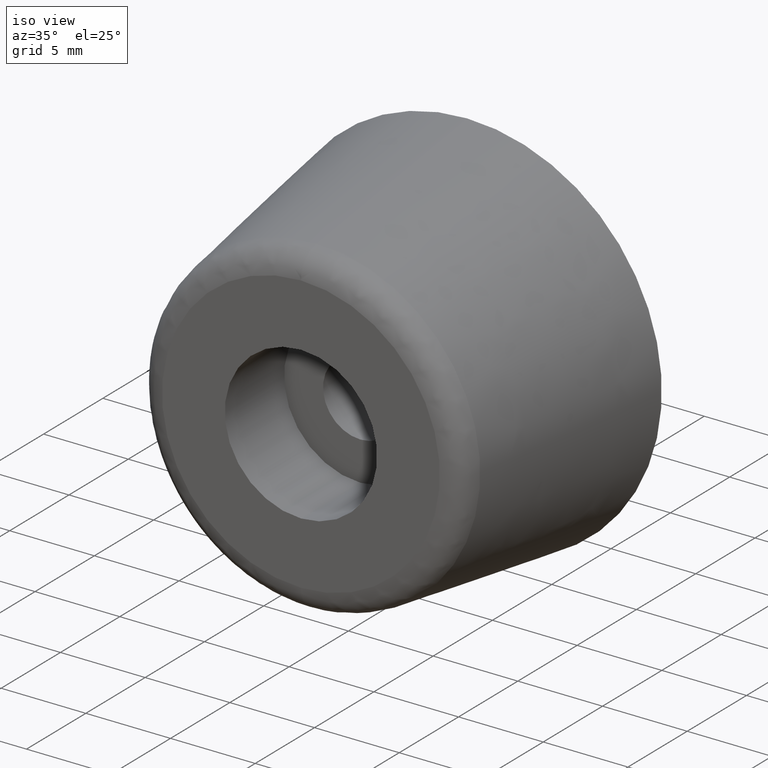
[diagram: clean part render]
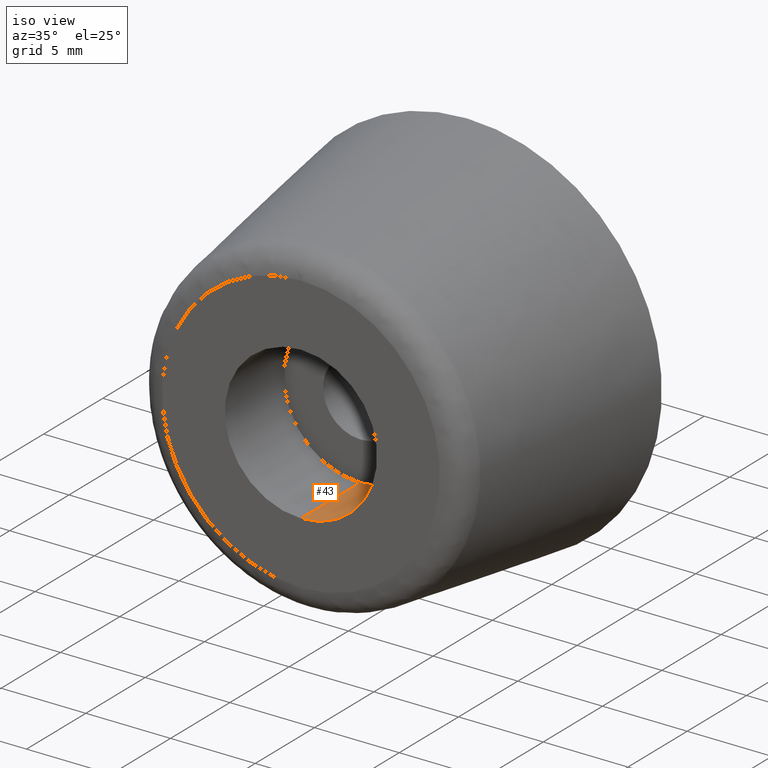
[diagram: same view with one face highlighted and labeled with its STEP entity id]
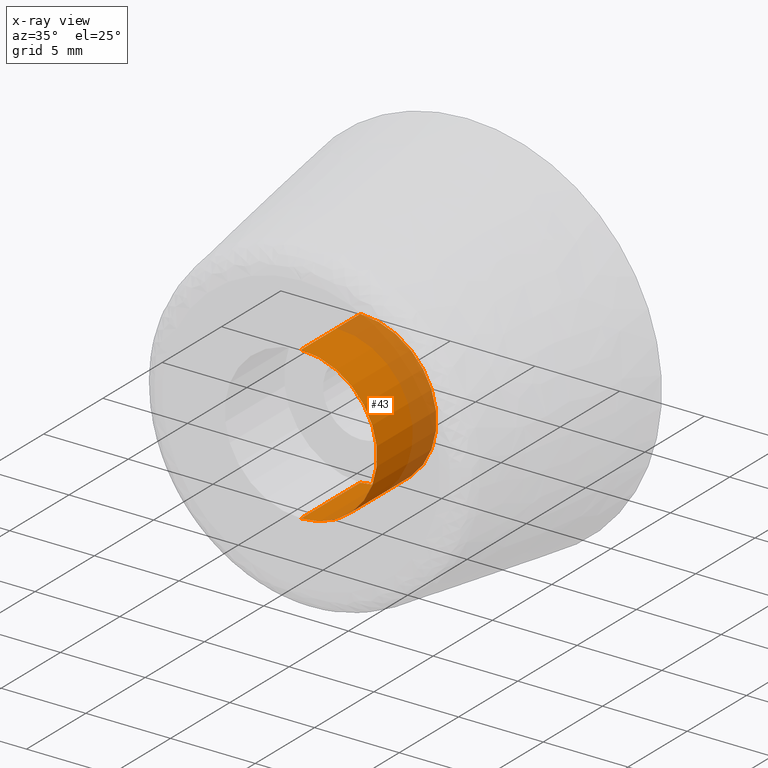
[diagram: x-ray of the same camera — body ghosted, the highlighted face saturated]
A machine part, iso view. The second image highlights one B-rep face of the part: STEP entity #43.
The next image is the same camera in x-ray: the body ghosted, the highlighted face saturated — about 36% of this face is hidden behind the body in this view.
In plain terms, the highlighted cylindrical surface (partial cylindrical patch) has radius 4.5 mm, axis along (-0, 1, 0).
Its self-contained STEP definition (entity closure, byte-faithful):
#43=ADVANCED_FACE('',(#85),#84,.F.);
#84=CYLINDRICAL_SURFACE('',#185,4.50000000000E+00);
#85=FACE_OUTER_BOUND('',#186,.T.);
#182=CARTESIAN_POINT('',(-1.42108547152E-14,0.00000000000E+00,0.00000000000E+00));
#183=DIRECTION('',(-0.00000000000E+00,1.00000000000E+00,0.00000000000E+00));
#184=DIRECTION('',(-0.00000000000E+00,-0.00000000000E+00,1.00000000000E+00));
#185=AXIS2_PLACEMENT_3D('',#182,#183,#184);
#186=EDGE_LOOP('',(#288,#289,#290,#291));
#288=ORIENTED_EDGE('',*,*,#327,.T.);
#289=ORIENTED_EDGE('',*,*,#332,.T.);
#290=ORIENTED_EDGE('',*,*,#320,.F.);
#291=ORIENTED_EDGE('',*,*,#333,.F.);
#320=EDGE_CURVE('',#342,#343,#344,.T.);
#327=EDGE_CURVE('',#385,#384,#392,.T.);
#332=EDGE_CURVE('',#384,#343,#426,.T.);
#333=EDGE_CURVE('',#385,#342,#432,.T.);
#342=VERTEX_POINT('',#488);
#343=VERTEX_POINT('',#489);
#344=CIRCLE('',#493,4.50000000000E+00);
#384=VERTEX_POINT('',#518);
#385=VERTEX_POINT('',#519);
#392=CIRCLE('',#527,4.50000000000E+00);
#426=(BOUNDED_CURVE() B_SPLINE_CURVE(1,(#548,#549),.UNSPECIFIED.,.F.,.F.) B_SPLINE_CURVE_WITH_KNOTS((2,2),(8.33333383004E-02,9.16666664635E-01),.UNSPECIFIED.) CURVE() GEOMETRIC_REPRESENTATION_ITEM() RATIONAL_B_SPLINE_CURVE((1.00000000000E+00,1.00000000000E+00)) REPRESENTATION_ITEM('') );
#432=(BOUNDED_CURVE() B_SPLINE_CURVE(1,(#550,#551),.UNSPECIFIED.,.F.,.F.) B_SPLINE_CURVE_WITH_KNOTS((2,2),(8.33333333333E-02,9.16666666667E-01),.UNSPECIFIED.) CURVE() GEOMETRIC_REPRESENTATION_ITEM() RATIONAL_B_SPLINE_CURVE((7.50000000000E-01,7.50000000000E-01)) REPRESENTATION_ITEM('') );
#488=CARTESIAN_POINT('',(-1.42108547152E-14,-9.00000000000E+00,-4.50000000000E+00));
#489=CARTESIAN_POINT('',(-1.37667655054E-14,-9.00000000000E+00,4.50000000000E+00));
#490=CARTESIAN_POINT('',(-1.42108547152E-14,-9.00000000000E+00,0.00000000000E+00));
#491=DIRECTION('',(0.00000000000E+00,-1.00000000000E+00,-0.00000000000E+00));
#492=DIRECTION('',(-1.22460635382E-16,0.00000000000E+00,-1.00000000000E+00));
#493=AXIS2_PLACEMENT_3D('',#490,#491,#492);
#518=CARTESIAN_POINT('',(-1.37667655054E-14,-1.40000000000E+01,4.50000000000E+00));
#519=CARTESIAN_POINT('',(-1.42108547152E-14,-1.40000000000E+01,-4.50000000000E+00));
#524=CARTESIAN_POINT('',(-1.42108547152E-14,-1.40000000000E+01,0.00000000000E+00));
#525=DIRECTION('',(0.00000000000E+00,-1.00000000000E+00,-0.00000000000E+00));
#526=DIRECTION('',(-1.22460635382E-16,0.00000000000E+00,-1.00000000000E+00));
#527=AXIS2_PLACEMENT_3D('',#524,#525,#526);
#548=CARTESIAN_POINT('',(-1.42108547152E-14,-1.39999999702E+01,4.50000000000E+00));
#549=CARTESIAN_POINT('',(-1.42108547152E-14,-9.00000001219E+00,4.50000000000E+00));
#550=CARTESIAN_POINT('',(-1.43588844518E-14,-1.40000000000E+01,-4.50000000000E+00));
#551=CARTESIAN_POINT('',(-1.43588844518E-14,-9.00000000000E+00,-4.50000000000E+00));